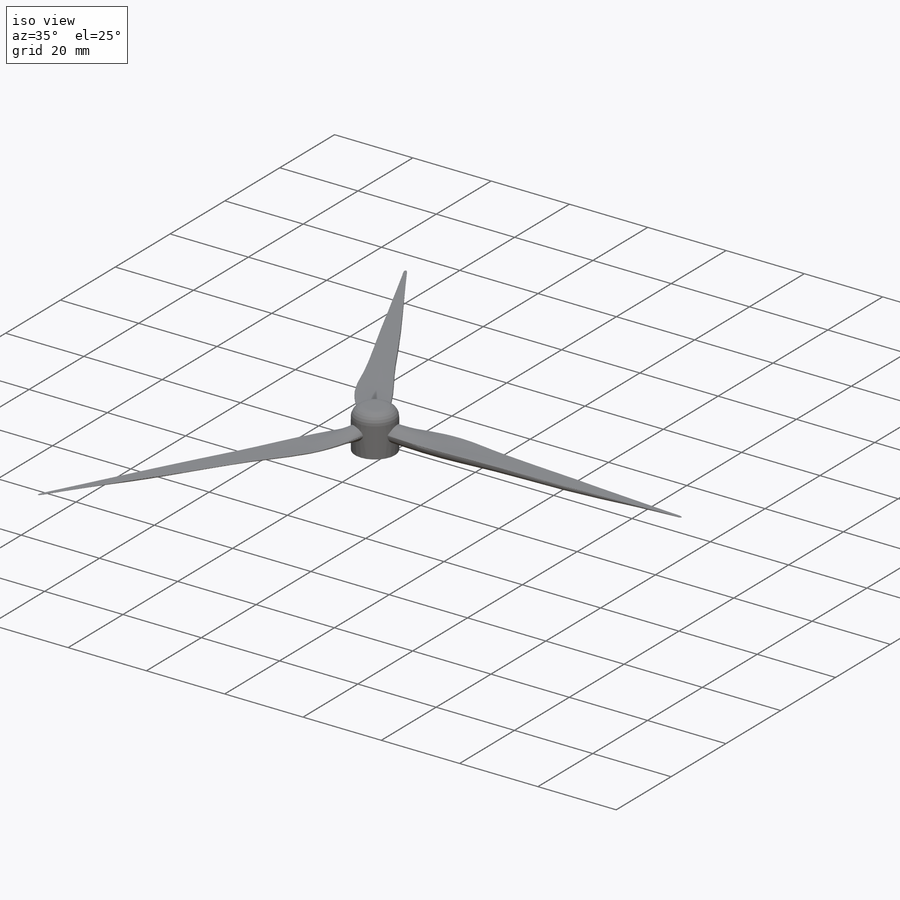
[diagram: iso view]
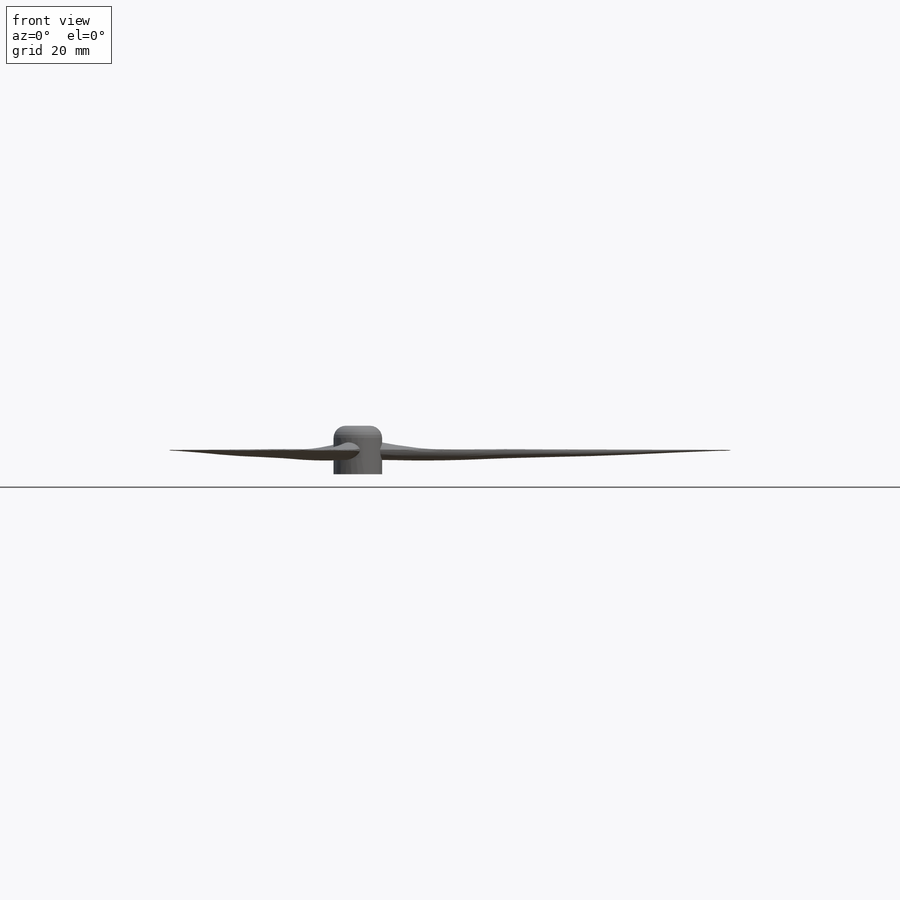
[diagram: front view]
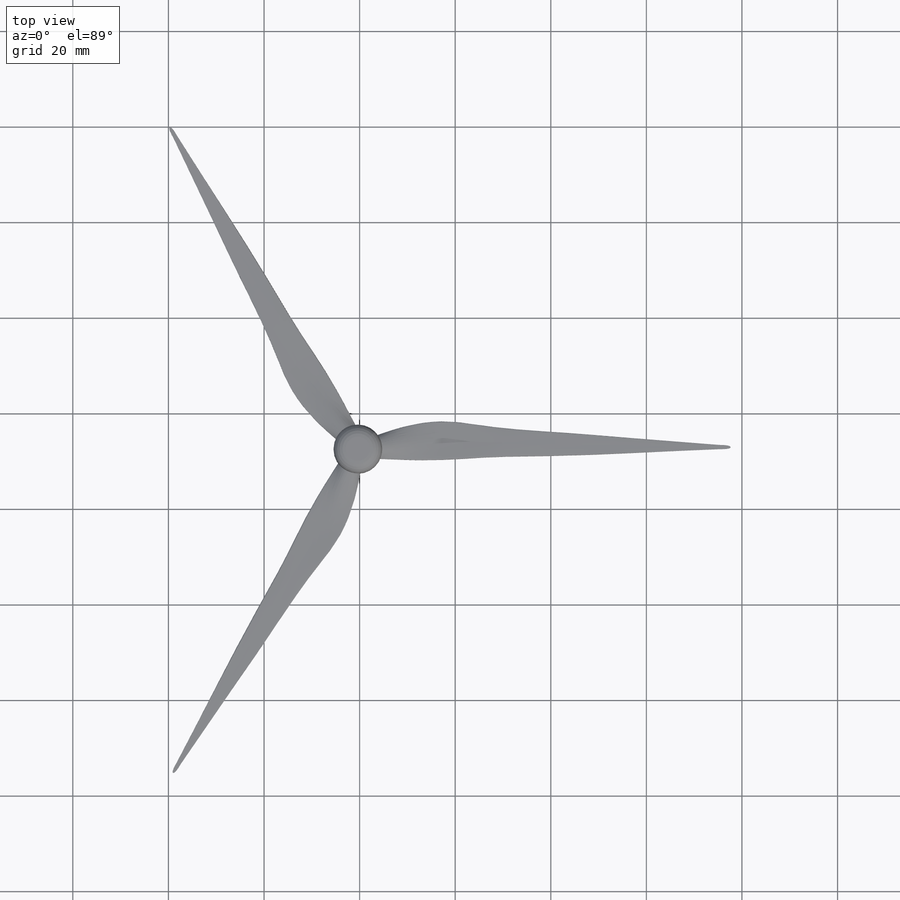
[diagram: top view]
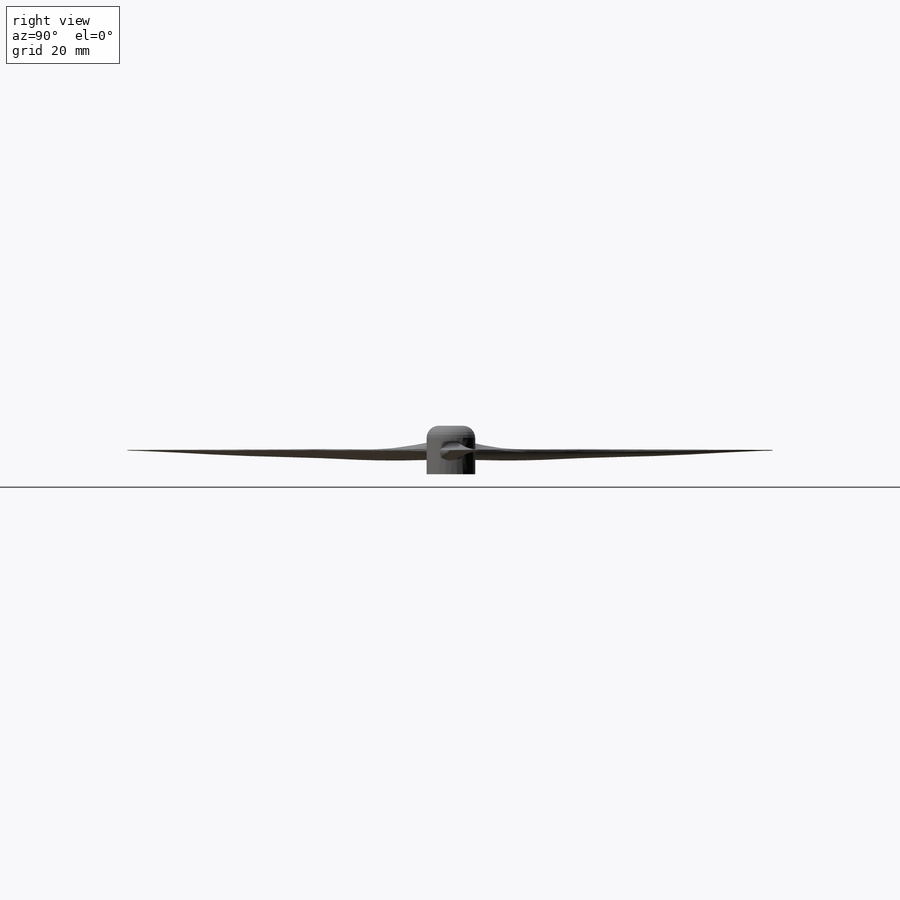
[diagram: right view]
SOLIDWORKS PART (.sldprt)
format: sldprt  version: not decoded by parser v0  size: 621,056 bytes
history: native  units: mm
features: sketch x16, plane x7, material x1, dome x1, extrude x1, fillet x1, pattern_circular x1, boolean_combine x1 (+16 scaffold rows collapsed)
feature tree (45):
  scaffold x16  (default folders/planes/origin — collapsed)
  material  "Material <not specified>"
  sketch  "Sketch1"  dims[D1=12.7mm]
  plane  "Plane2"
  plane  "Plane3"
  plane  "Plane4"
  plane  "Plane5"
  plane  "Plane6"
  plane  "Plane7"
  plane  "Plane1"
  sketch  "Sketch2"
  sketch  "Sketch3"
  sketch  "Sketch4"
  sketch  "Sketch5"
  sketch  "Sketch6"
  sketch  "Sketch8"
  sketch  "Sketch9"
  sketch  "Sketch10"
  sketch  "Sketch11"
  sketch  "Sketch12"
  sketch  "Sketch13"
  sketch  "Sketch15"
  sketch  "Sketch16"
  sketch  "Sketch17"
  dome  "Dome4"
  sketch  "Sketch18"  dims[D2=~3.933833mm D1=2.54mm]
  extrude  "Extrude1"  Depth=5.08mm
  fillet  "Fillet1"  Radius=2.54mm
  pattern_circular  "CirPattern1"  Count=3 Angle=360deg
  boolean_combine  "Combine1"
decode coverage: 5 of 21 modeling features carry decoded parameters
note: ~ marks probable driven/reference dimensions
note: suppression state not decoded; provenance and decode notes live in map.json
